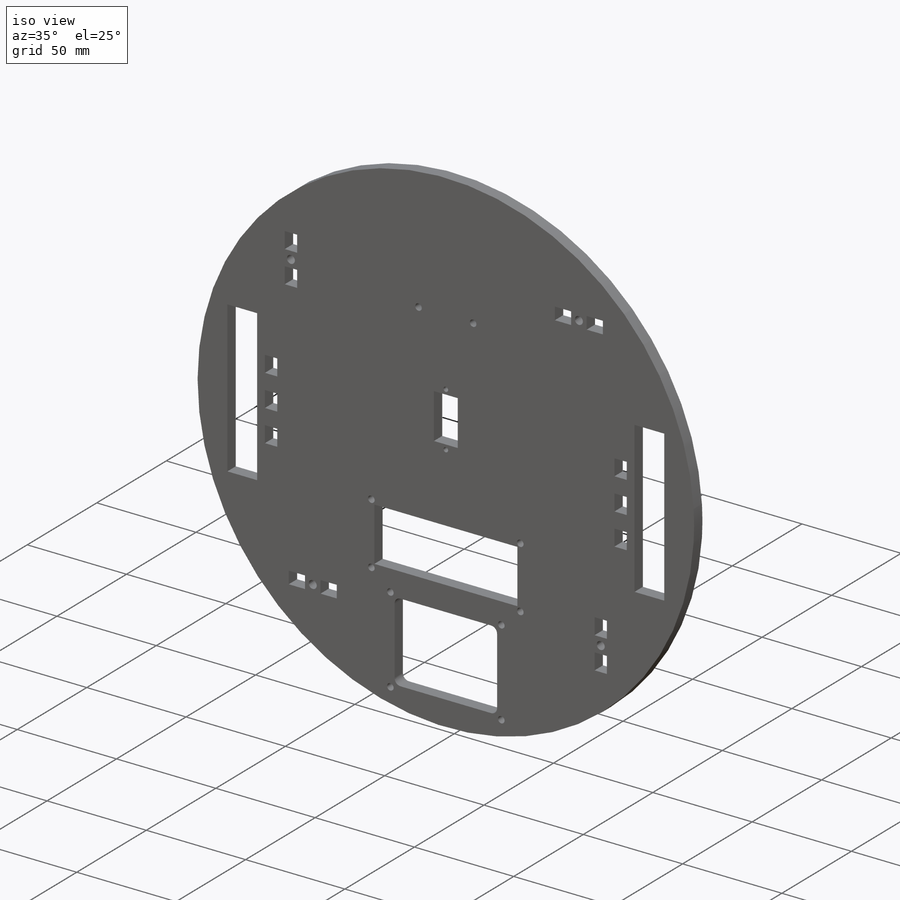
[diagram: iso view]
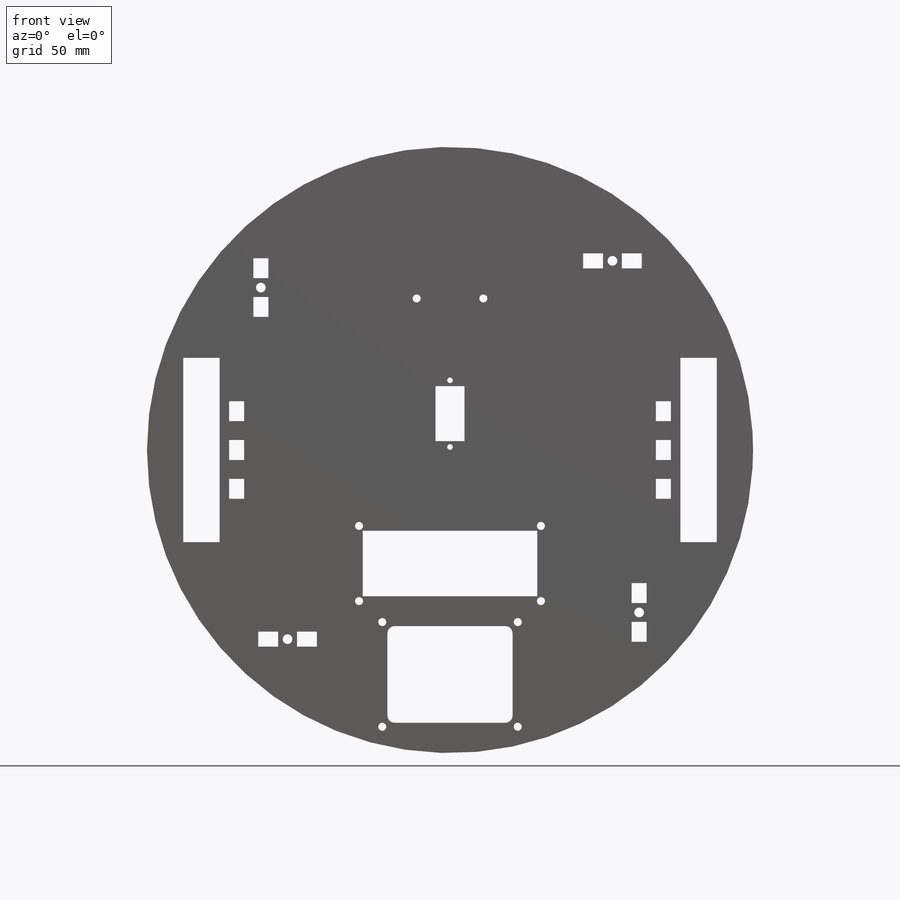
[diagram: front view]
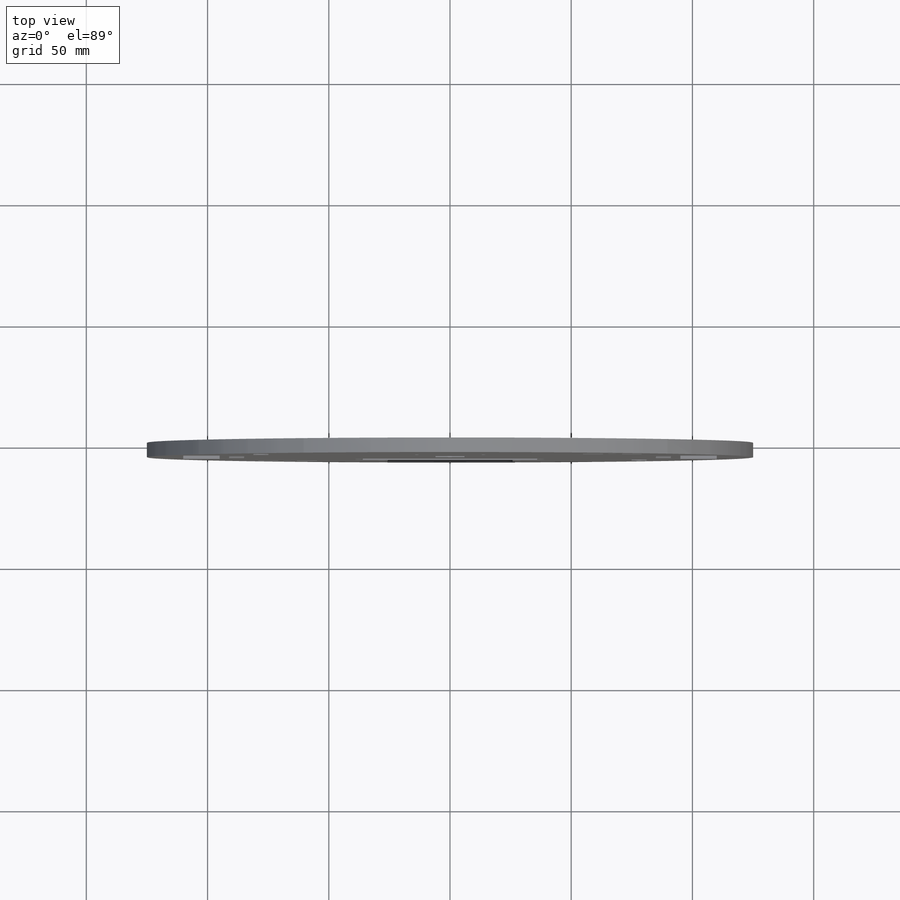
[diagram: top view]
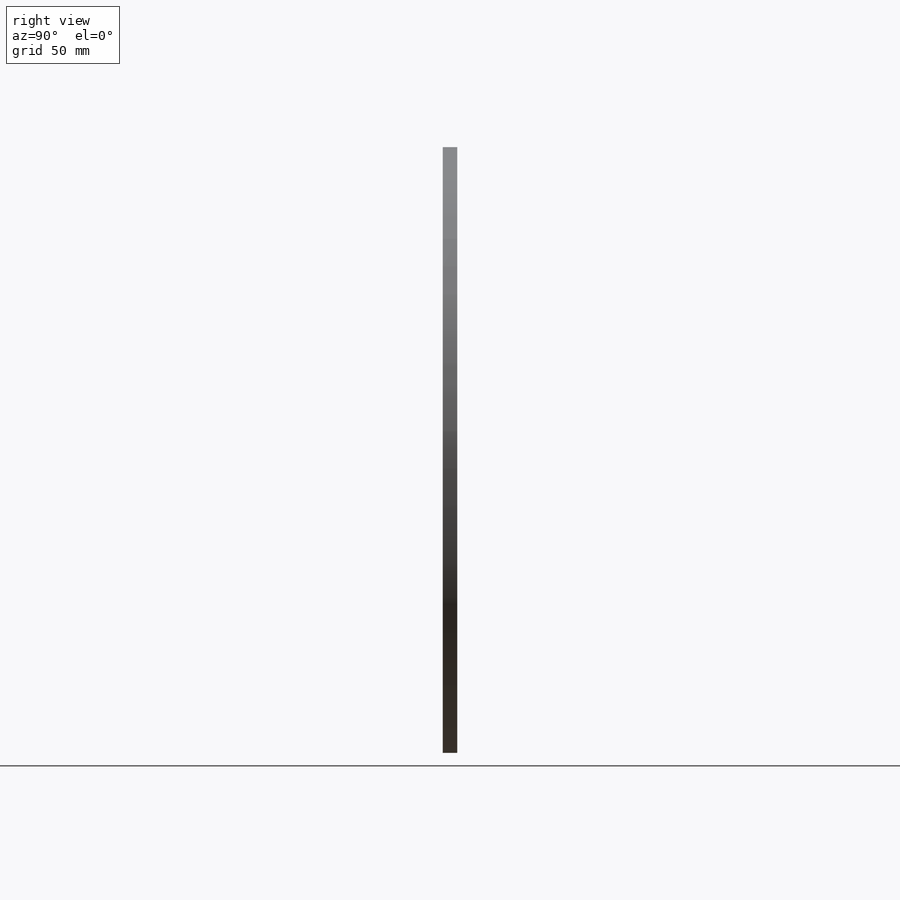
[diagram: right view]
SOLIDWORKS PART (.sldprt)
format: sldprt  version: not decoded by parser v0  size: 649,728 bytes
history: native  units: mm
features: sketch x6, cut_extrude x5, plane x3, pattern_circular x2, material x1, extrude x1, mirror x1 (+10 scaffold rows collapsed)
feature tree (29):
  scaffold x10  (default folders/planes/origin — collapsed)
  material  "Matériau <non spécifié>"
  plane  "Plan de face"
  plane  "Plan de dessus"
  plane  "Plan de droite"
  sketch  "Esquisse1"  dims[D1=~157.679775mm D2=~50.957674mm]
  extrude  "Boss.-Extru.1"  Depth=6mm
  sketch  "Esquisse2"  dims[D1=38.0mm D2=38.0mm D3=15.0mm D4=95.0mm]
  cut_extrude  "Enlèv. mat.-Extru.1"  [1 undecoded]
  mirror  "Symétrie1"
  sketch  "Esquisse3"  dims[c1.D6=4.0mm c1.D1=~6.541901mm c1.D2=~10.903168mm c2.D1=8.2mm c2.D2=6.2mm c2.D3=5.0mm c2.D4=~9.44522mm c3.D3=6.0mm c3.D4=8.2mm c3.D5=8.0mm c3.D6=~4.560861mm c3.D7=55.0mm c3.D8=75.0mm c4.D5=16.0mm c4.D7=67.0mm c4.D8=78.0mm]
  cut_extrude  "Enlèv. mat.-Extru.2"  [1 undecoded]
  pattern_circular  "Répétition circulaire1"  Count=4 Angle=90deg
  sketch  "Esquisse4"  dims[c1.D1=~57.489435mm c1.D2=~11.072039mm c2.D1=5.0mm c2.D2=6.2mm c2.D3=40.0mm c2.D4=20.0mm c2.D5=8.2mm c2.D6=8.2mm c2.D7=4.0mm c2.D8=8.2mm c3.D3=32.0mm c3.D4=16.0mm c3.D1=7.0mm]
  cut_extrude  "Enlèv. mat.-Extru.3"  [1 undecoded]
  pattern_circular  "Symétrie2"  [2 undecoded]
  sketch  "Esquisse8"  dims[D5=3.3mm D6=3.3mm D7=3.3mm D8=3.3mm D11=3.3mm D12=3.3mm D13=3.3mm D14=3.3mm D15=3.0mm D1=27.0mm D2=72.0mm D3=75.0mm D4=31.0mm D9=55.88mm D10=43.18mm]
  cut_extrude  "Enlèv. mat.-Extru.4"  [1 undecoded]
  sketch  "Esquisse9"  dims[D2=3.3mm D3=3.3mm D6=2.3mm D7=2.3mm D1=27.5mm D4=22.7mm D5=12.0mm D8=4.7mm D9=4.7mm D10=2.3mm D11=2.3mm D12=15.0mm]
  cut_extrude  "Enlèv. mat.-Extru.5"  [1 undecoded]
decode coverage: 8 of 15 modeling features carry decoded parameters
note: ~ marks probable driven/reference dimensions
note: 7 parameter values undecoded
summary: no parameter record found for 5 features
note: suppression state not decoded; provenance and decode notes live in map.json
